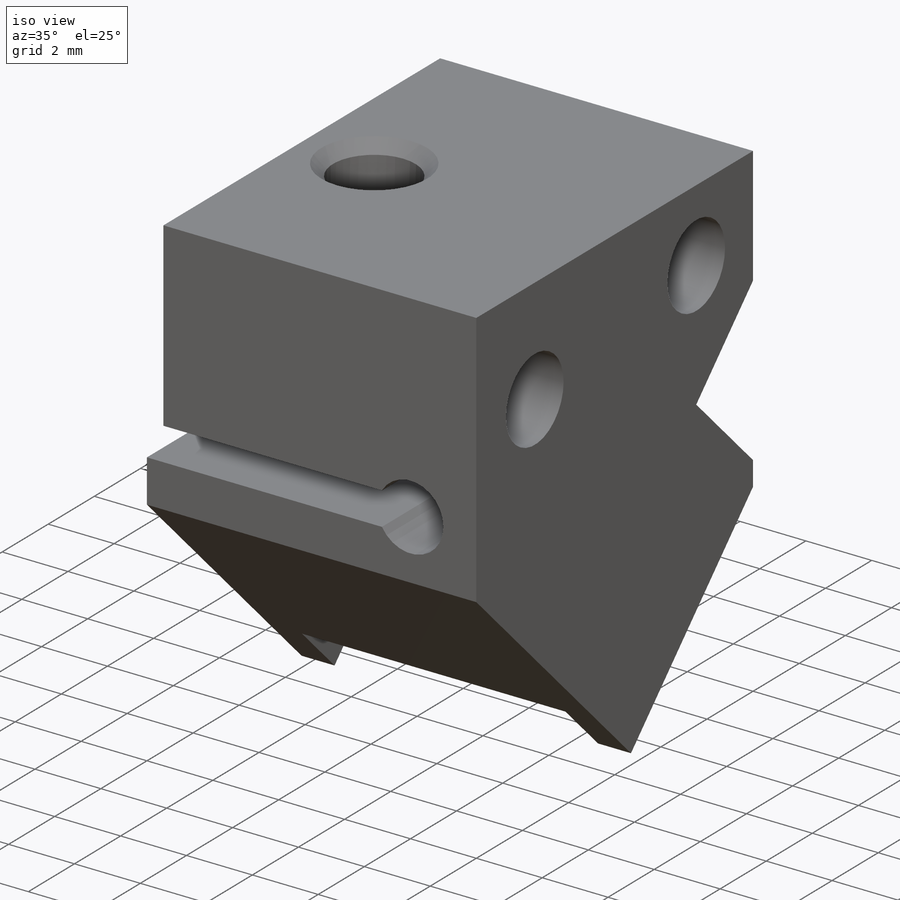
[diagram: iso view]
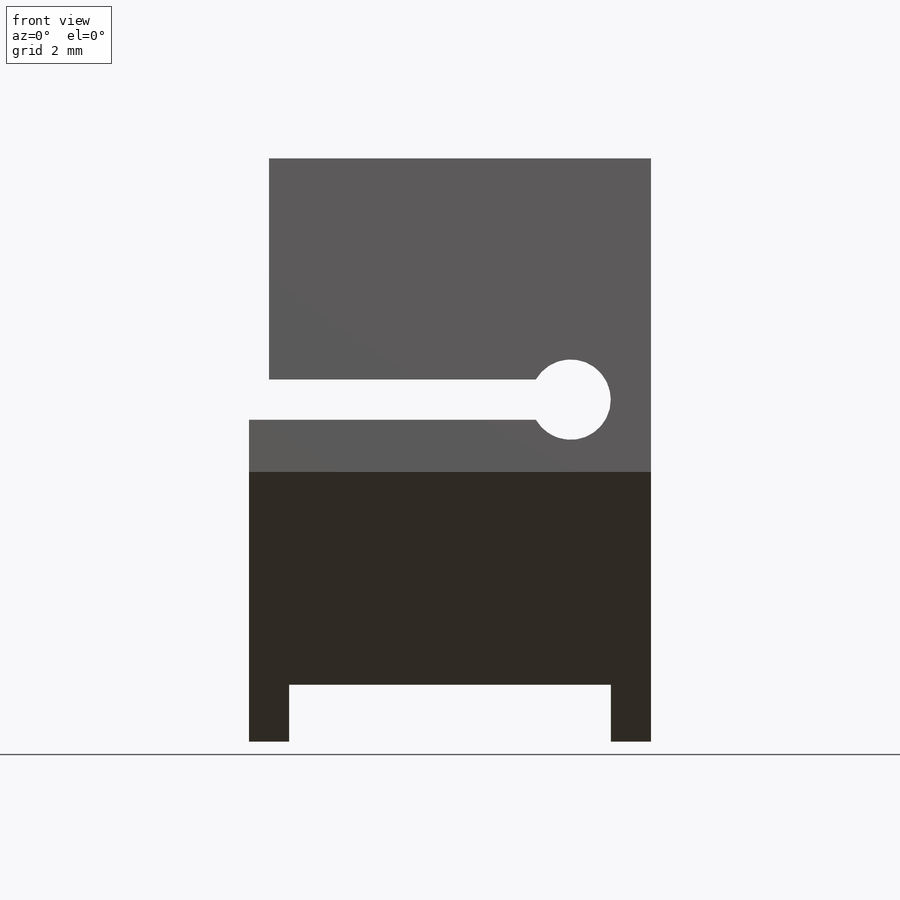
[diagram: front view]
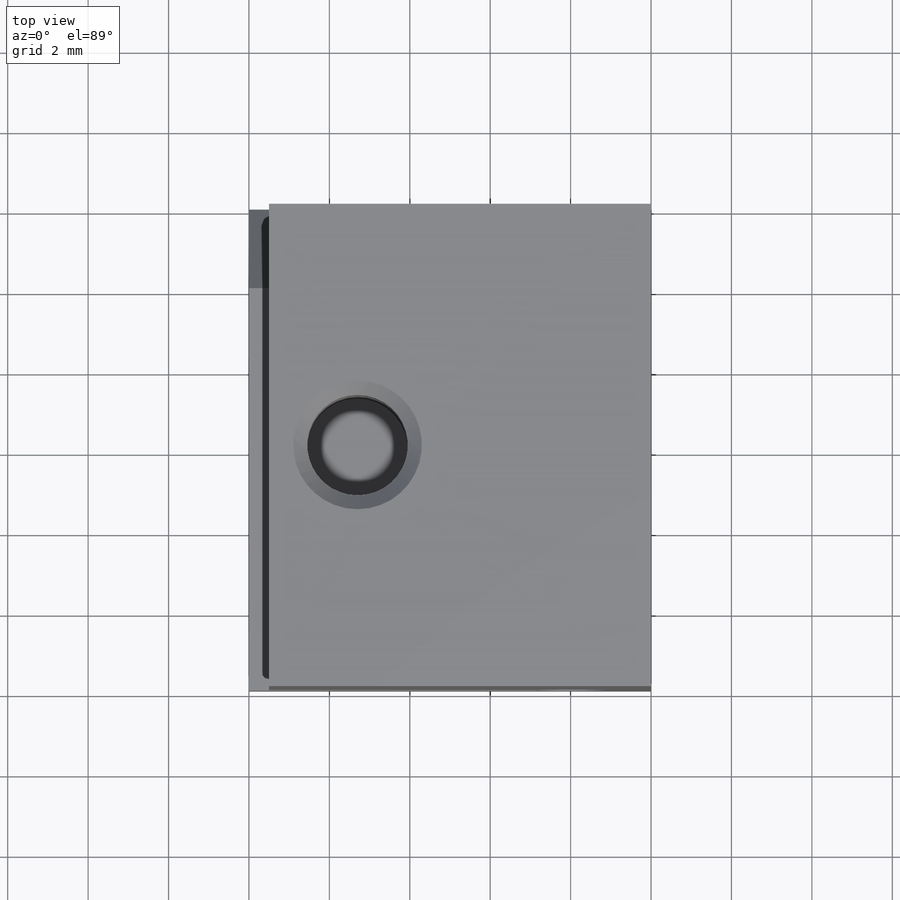
[diagram: top view]
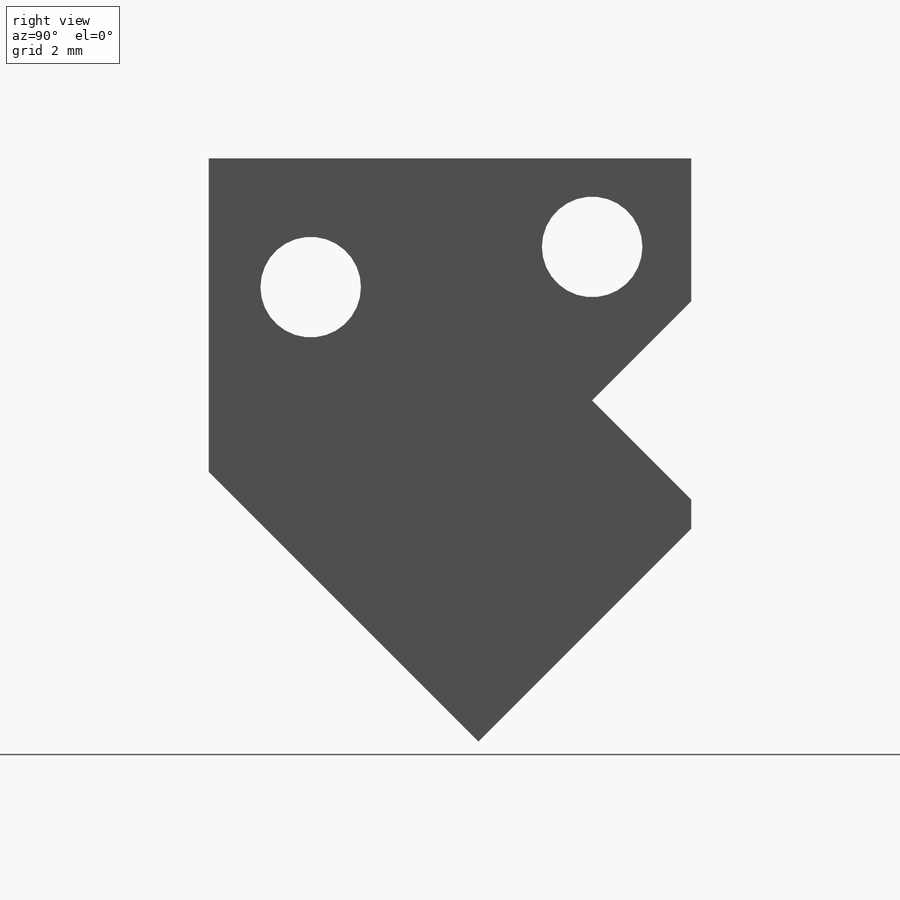
[diagram: right view]
SOLIDWORKS PART (.sldprt)
format: sldprt  version: not decoded by parser v0  size: 332,288 bytes
history: native  units: mm
features: sketch x8, cut_extrude x3, thread x3, hole x2, material x1, extrude x1 (+14 scaffold rows collapsed)
feature tree (32):
  scaffold x14  (default folders/planes/origin — collapsed)
  material  "2024-T4"
  sketch  "Эскиз1"  dims[c1.D1=8.0mm c1.D2=14.0mm c1.D3=20.0mm c2.D3=45.0deg c2.D4=12.5mm c2.D1=11.5mm c2.D2=9.0mm c2.D5=5.0mm c3.D4=15.0mm c3.D1=14.0mm c3.D2=16.0mm c4.D1=14.0mm c4.D2=3.0mm c4.D3=3.0mm c4.D4=15.0mm c4.D5=11.0mm c4.D6=~8.79899mm c5.D6=45.0deg c5.D1=12.0mm c5.D2=14.0mm]
  extrude  "Бобышка-Вытянуть1"  Depth=10mm
  sketch  "Эскиз2"  dims[c1.D1=1.0mm c1.D2=8.0mm c1.D3=20.0mm c1.D4=~3.22848mm c2.D2=8.0mm c2.D3=3.0mm c2.D1=1.0mm]
  cut_extrude  "Вырез-Вытянуть1"  Depth=2mm
  sketch  "Эскиз3"  dims[c1.D4=1.0mm c1.D6=1.0mm c1.D1=6.5mm c1.D2=1.0mm c1.D3=0.5mm c2.D4=1.5mm c2.D5=2.0mm c2.D6=6.0mm]
  cut_extrude  "Вырез-Вытянуть2"  [1 undecoded]
  hole  "Отверстие обработанное метчиком M31"  [1 undecoded]
  sketch  "Эскиз5"  dims[D1=7.0mm D2=1.0mm D3=4.7mm D4=10.7mm]
  sketch  "Эскиз4"  dims[hole-wizard template sketch: 55 standard entries collapsed; hole parameters kept: c17.Глубина проходного сверла=10.0mm c17.Диаметр передней зенковки=3.3mm c17.D4=~3.666174mm c17.Угол передней зенковки=90.0deg]
  thread  "Отверстие резьбы6"  Diameter=6mm  [1 undecoded]
  thread  "Отверстие резьбы7"  Diameter=6mm  [1 undecoded]
  hole  "Отверстие обработанное метчиком M32"  [1 undecoded]
  sketch  "Эскиз7"  dims[D1=2.2mm D2=6.0mm]
  thread  "Отверстие резьбы3"  Diameter=3mm  [1 undecoded]
  sketch  "Эскиз6"  dims[hole-wizard template sketch: 55 standard entries collapsed; hole parameters kept: c17.Глубина проходного сверла=5.5mm c17.Диаметр передней зенковки=3.2mm c17.D4=~3.666174mm c17.Угол передней зенковки=90.0deg]
  sketch  "Эскиз9"  dims[D1=4.0mm]
  cut_extrude  "Вырез-Вытянуть3"  Depth=4mm
decode coverage: 14 of 17 modeling features carry decoded parameters
note: ~ marks probable driven/reference dimensions
note: 6 parameter values undecoded
summary: no parameter record found for 3 features
note: suppression state not decoded; provenance and decode notes live in map.json
